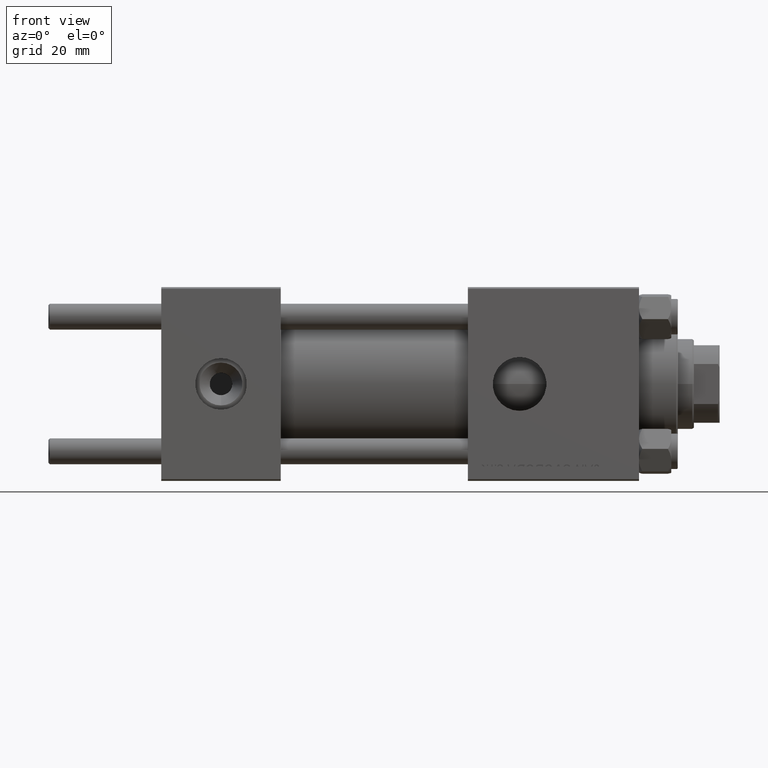
[diagram: clean part render]
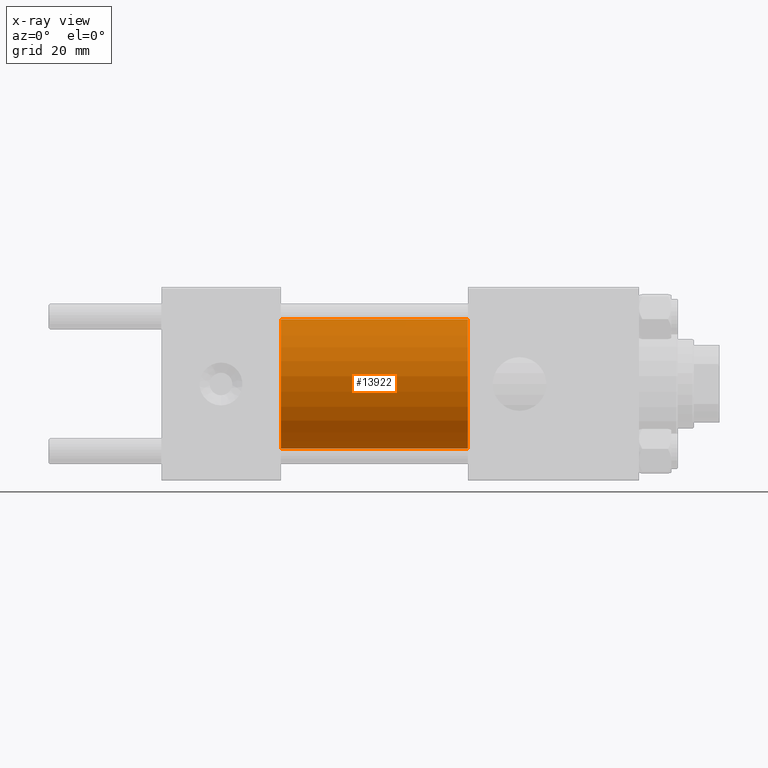
[diagram: x-ray — body ghosted, one internal face saturated and labeled with its STEP entity id]
A machine part, front view, then the same camera in x-ray: the body is ghosted and one INTERNAL B-rep face — a face not visible from any outside direction — is saturated and labeled: STEP entity #13922.
In plain terms, the highlighted cylindrical surface (partial cylindrical patch) has radius 20 mm, axis along (-1, -0, -0).
Its self-contained STEP definition (entity closure, byte-faithful):
#1065 = CARTESIAN_POINT ( 'NONE',  ( 95.00000000000000000, 0.000000000000000000, 0.000000000000000000 ) ) ;
#1856 = DIRECTION ( 'NONE',  ( -1.000000000000000000, -0.000000000000000000, -0.000000000000000000 ) ) ;
#3433 = CARTESIAN_POINT ( 'NONE',  ( 95.00000000000000000, 0.000000000000000000, 0.000000000000000000 ) ) ;
#4563 = CARTESIAN_POINT ( 'NONE',  ( 37.00000000000000000, 0.000000000000000000, 20.00000000000000000 ) ) ;
#5610 = CARTESIAN_POINT ( 'NONE',  ( 95.00000000000000000, 0.000000000000000000, 20.00000000000000000 ) ) ;
#5773 = CARTESIAN_POINT ( 'NONE',  ( 37.00000000000000000, 2.449293598294706119E-15, -20.00000000000000000 ) ) ;
#8787 = AXIS2_PLACEMENT_3D ( 'NONE', #1065, #37731, #13187 ) ;
#9262 = VECTOR ( 'NONE', #47522, 1000.000000000000000 ) ;
#11143 = DIRECTION ( 'NONE',  ( 1.000000000000000000, 0.000000000000000000, 0.000000000000000000 ) ) ;
#12121 = AXIS2_PLACEMENT_3D ( 'NONE', #3433, #51967, #15811 ) ;
#12340 = EDGE_CURVE ( 'NONE', #24489, #32027, #29813, .T. ) ;
#12445 = EDGE_CURVE ( 'NONE', #33407, #24489, #41637, .T. ) ;
#12531 = ORIENTED_EDGE ( 'NONE', *, *, #12445, .T. ) ;
#13187 = DIRECTION ( 'NONE',  ( 0.000000000000000000, 0.000000000000000000, 1.000000000000000000 ) ) ;
#13512 = EDGE_LOOP ( 'NONE', ( #12531, #14577, #26177, #21945 ) ) ;
#13527 = CIRCLE ( 'NONE', #23703, 20.00000000000000000 ) ;
#13601 = VERTEX_POINT ( 'NONE', #4563 ) ;
#13922 = ADVANCED_FACE ( 'NONE', ( #21103 ), #37219, .F. ) ;
#14577 = ORIENTED_EDGE ( 'NONE', *, *, #12340, .T. ) ;
#15089 = DIRECTION ( 'NONE',  ( 0.000000000000000000, 0.000000000000000000, -1.000000000000000000 ) ) ;
#15352 = CARTESIAN_POINT ( 'NONE',  ( 37.00000000000000000, 0.000000000000000000, 0.000000000000000000 ) ) ;
#15811 = DIRECTION ( 'NONE',  ( 0.000000000000000000, 0.000000000000000000, -1.000000000000000000 ) ) ;
#16348 = VECTOR ( 'NONE', #1856, 1000.000000000000000 ) ;
#19797 = CARTESIAN_POINT ( 'NONE',  ( 95.00000000000000000, 0.000000000000000000, 20.00000000000000000 ) ) ;
#21103 = FACE_OUTER_BOUND ( 'NONE', #13512, .T. ) ;
#21945 = ORIENTED_EDGE ( 'NONE', *, *, #30554, .F. ) ;
#23703 = AXIS2_PLACEMENT_3D ( 'NONE', #15352, #11143, #15089 ) ;
#24489 = VERTEX_POINT ( 'NONE', #51610 ) ;
#26177 = ORIENTED_EDGE ( 'NONE', *, *, #44277, .F. ) ;
#29813 = LINE ( 'NONE', #45158, #16348 ) ;
#30554 = EDGE_CURVE ( 'NONE', #33407, #13601, #31156, .T. ) ;
#31156 = LINE ( 'NONE', #19797, #9262 ) ;
#32027 = VERTEX_POINT ( 'NONE', #5773 ) ;
#33407 = VERTEX_POINT ( 'NONE', #5610 ) ;
#37219 = CYLINDRICAL_SURFACE ( 'NONE', #8787, 20.00000000000000000 ) ;
#37731 = DIRECTION ( 'NONE',  ( -1.000000000000000000, -0.000000000000000000, -0.000000000000000000 ) ) ;
#41637 = CIRCLE ( 'NONE', #12121, 20.00000000000000000 ) ;
#44277 = EDGE_CURVE ( 'NONE', #13601, #32027, #13527, .T. ) ;
#45158 = CARTESIAN_POINT ( 'NONE',  ( 95.00000000000000000, 2.449293598294706119E-15, -20.00000000000000000 ) ) ;
#47522 = DIRECTION ( 'NONE',  ( -1.000000000000000000, -0.000000000000000000, -0.000000000000000000 ) ) ;
#51610 = CARTESIAN_POINT ( 'NONE',  ( 95.00000000000000000, 2.449293598294706119E-15, -20.00000000000000000 ) ) ;
#51967 = DIRECTION ( 'NONE',  ( 1.000000000000000000, 0.000000000000000000, 0.000000000000000000 ) ) ;